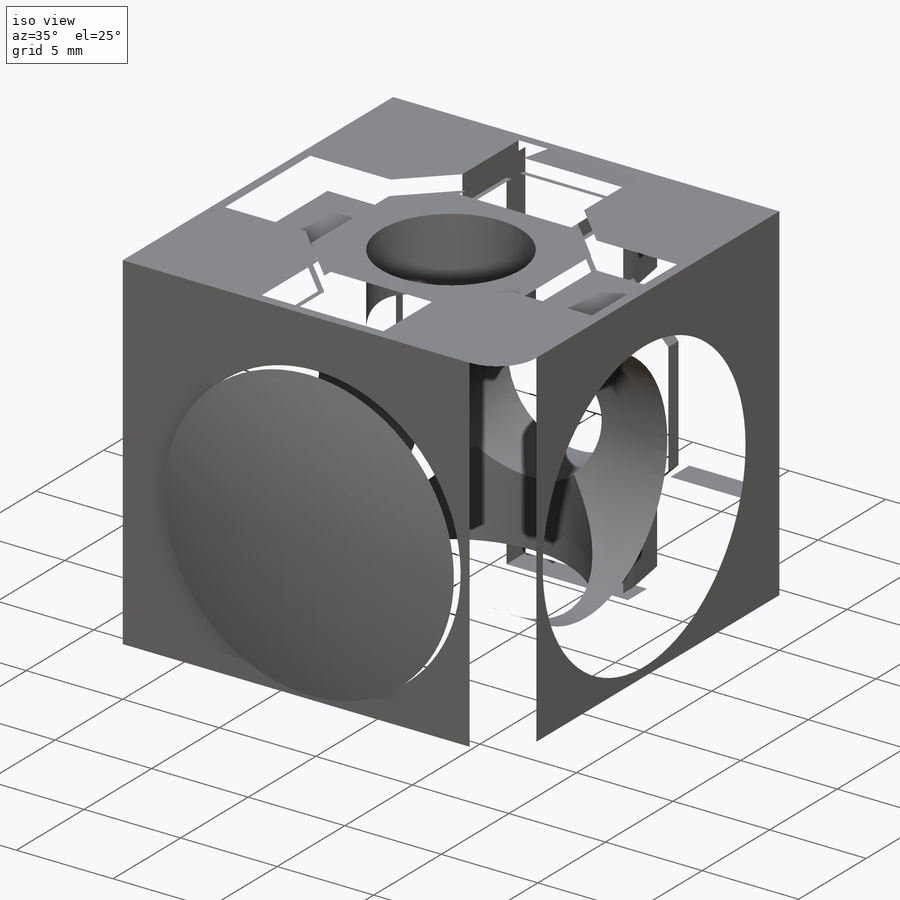
[diagram: iso view]
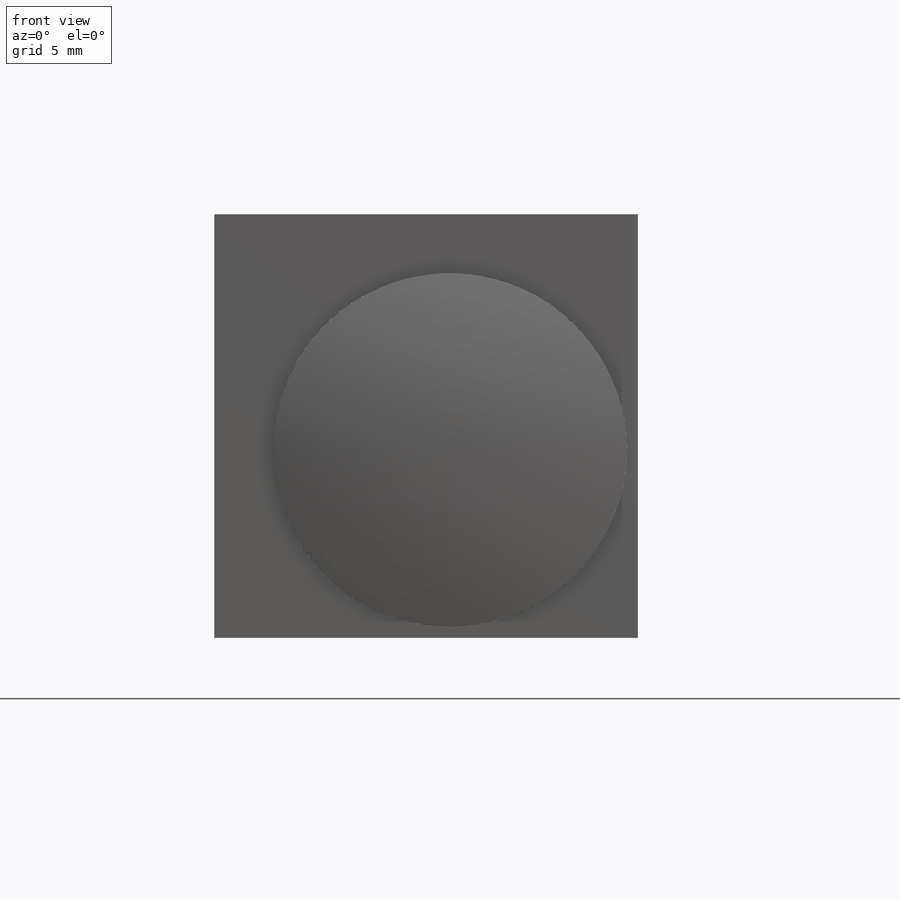
[diagram: front view]
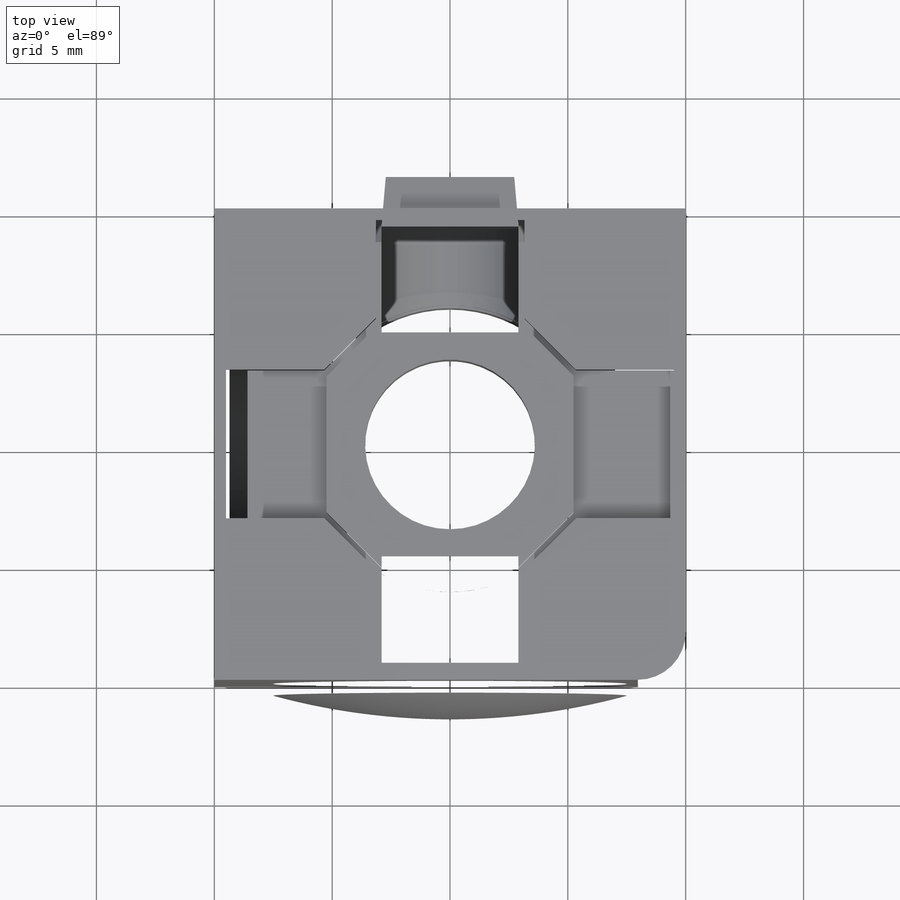
[diagram: top view]
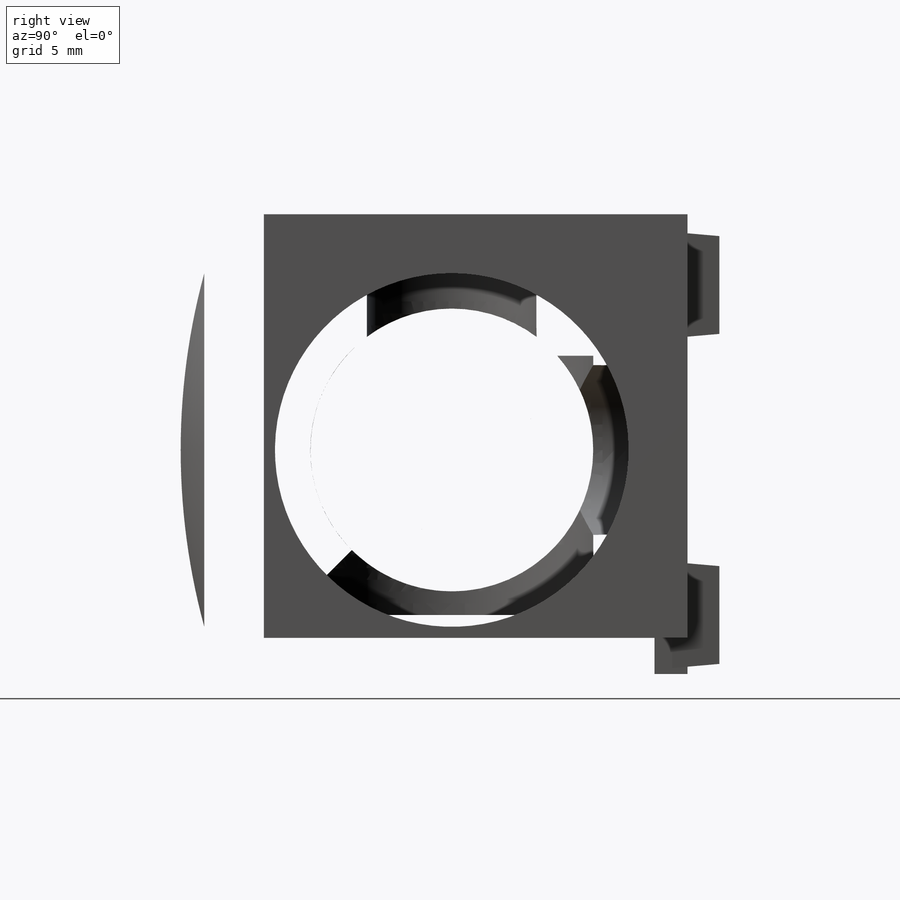
[diagram: right view]
SOLIDWORKS PART (.sldprt)
format: sldprt  version: not decoded by parser v0  size: 829,440 bytes
history: native  units: mm
features: sketch x10, extrude x4, cut_extrude x3, pattern_circular x2, material x1, revolve x1, fillet x1 (+13 scaffold rows collapsed)
feature tree (35):
  scaffold x13  (default folders/planes/origin — collapsed)
  material  "Material <not specified>"
  sketch  "Sketch1"  dims[D1=20.0mm]
  extrude  "Extrude1"  Depth=20mm depth=20mm
  sketch  "Sketch2"  dims[D1=12.0mm]
  cut_extrude  "Cut-Extrude1"  [1 undecoded]
  sketch  "Sketch3"  dims[D1=14.1mm]
  cut_extrude  "Cut-Extrude2"  [1 undecoded]
  sketch  "Sketch4"  dims[D1=7.2mm]
  extrude  "Extrude2"  Depth=6mm
  sketch  "Sketch14"  dims[c1.D1=6.3mm c1.D2=12.0mm c1.D3=~6.84731mm c2.D3=45.0deg c2.D4=19.0mm c2.D2=12.0mm]
  cut_extrude  "Cut-Extrude7"  Depth=1.4mm
  sketch  "Sketch15"  dims[D1=0.25mm]
  extrude  "Extrude4"  Depth=0.75mm
  sketch  "Sketch16"  dims[D1=4.5mm]
  extrude  "Extrude5"  Depth=2mm
  sketch  "Sketch7"
  sketch  "Sketch9"
  sketch  "Sketch13"  dims[D1=1.5mm D2=0.5mm D3=3.0mm D4=1.5mm]
  revolve  "Revolve1"  Angle=360deg
  pattern_circular  "CirPattern1"  Count=2 Angle=90deg
  pattern_circular  "CirPattern2"  Count=2 Angle=90deg
  fillet  "Fillet2"  Radius=2.032mm
decode coverage: 17 of 21 modeling features carry decoded parameters
note: ~ marks probable driven/reference dimensions
note: 2 parameter values undecoded
note: suppression state not decoded; provenance and decode notes live in map.json
